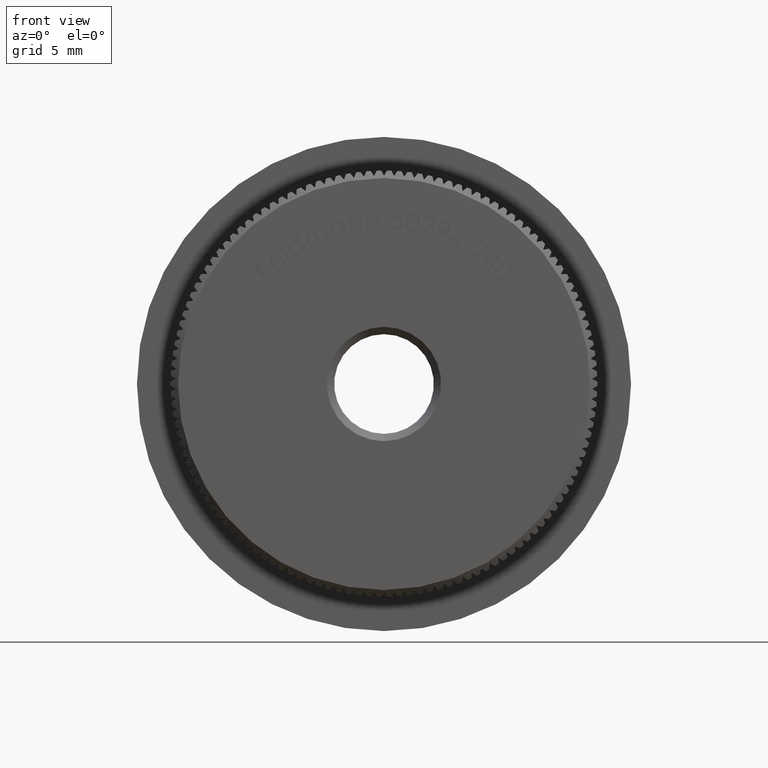
[diagram: clean part render]
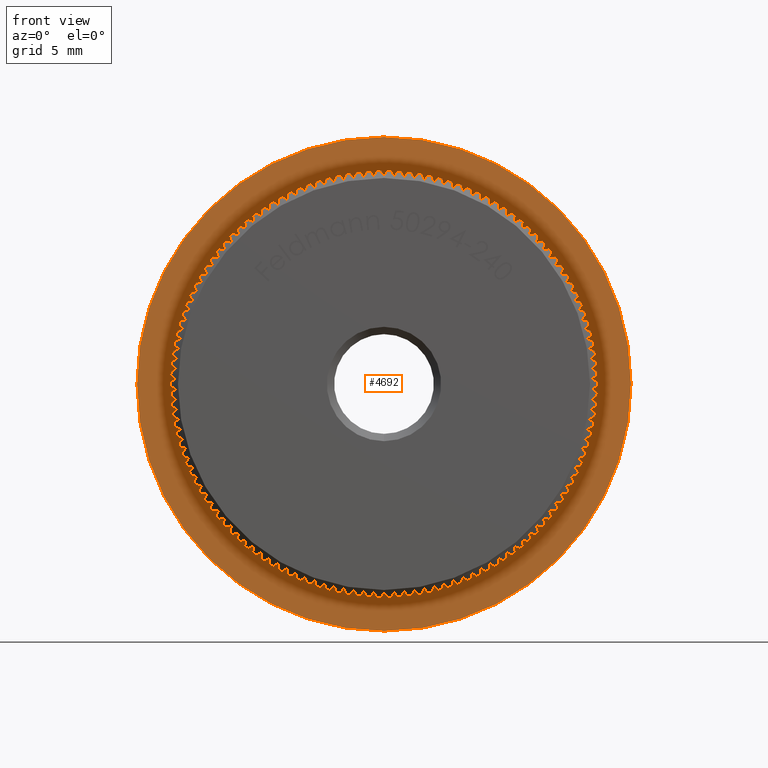
[diagram: same view with one face highlighted and labeled with its STEP entity id]
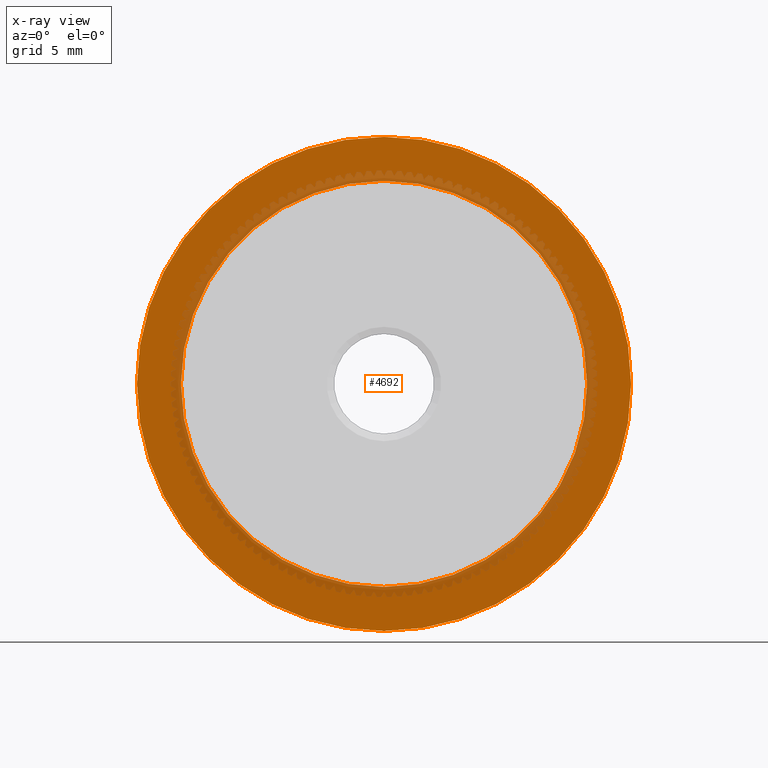
[diagram: x-ray of the same camera — body ghosted, the highlighted face saturated]
A machine part, front view. The second image highlights one B-rep face of the part: STEP entity #4692.
The next image is the same camera in x-ray: the body ghosted, the highlighted face saturated — about 20% of this face is hidden behind the body in this view.
In plain terms, the highlighted planar face has unit normal (0, -1, -0).
Its self-contained STEP definition (entity closure, byte-faithful):
#97 = EDGE_LOOP ( 'NONE', ( #6974, #23513 ) ) ;
#1040 = EDGE_CURVE ( 'NONE', #10703, #14695, #23790, .T. ) ;
#2200 = CARTESIAN_POINT ( 'NONE',  ( 13.85000000000000100, 7.799999999999999800, 0.0000000000000000000 ) ) ;
#2312 = CIRCLE ( 'NONE', #14915, 16.85000000000000100 ) ;
#2924 = CARTESIAN_POINT ( 'NONE',  ( 0.0000000000000000000, 7.799999999999998900, 0.0000000000000000000 ) ) ;
#3750 = AXIS2_PLACEMENT_3D ( 'NONE', #9830, #24171, #21865 ) ;
#4086 = DIRECTION ( 'NONE',  ( 0.0000000000000000000, 0.0000000000000000000, -1.000000000000000000 ) ) ;
#4467 = CARTESIAN_POINT ( 'NONE',  ( 0.0000000000000000000, 7.799999999999998900, -13.85000000000000100 ) ) ;
#4692 = ADVANCED_FACE ( 'NONE', ( #10247, #7026 ), #12594, .T. ) ;
#5930 = DIRECTION ( 'NONE',  ( -0.0000000000000000000, -1.000000000000000000, -0.0000000000000000000 ) ) ;
#6691 = AXIS2_PLACEMENT_3D ( 'NONE', #2200, #10358, #4086 ) ;
#6974 = ORIENTED_EDGE ( 'NONE', *, *, #23171, .T. ) ;
#7026 = FACE_BOUND ( 'NONE', #12973, .T. ) ;
#8613 = AXIS2_PLACEMENT_3D ( 'NONE', #23726, #11466, #13538 ) ;
#8686 = AXIS2_PLACEMENT_3D ( 'NONE', #2924, #9026, #15130 ) ;
#9026 = DIRECTION ( 'NONE',  ( -0.0000000000000000000, -1.000000000000000000, -0.0000000000000000000 ) ) ;
#9830 = CARTESIAN_POINT ( 'NONE',  ( 0.0000000000000000000, 7.799999999999998900, 0.0000000000000000000 ) ) ;
#10247 = FACE_OUTER_BOUND ( 'NONE', #97, .T. ) ;
#10358 = DIRECTION ( 'NONE',  ( 0.0000000000000000000, -1.000000000000000000, -0.0000000000000000000 ) ) ;
#10703 = VERTEX_POINT ( 'NONE', #22096 ) ;
#10786 = ORIENTED_EDGE ( 'NONE', *, *, #1040, .F. ) ;
#11466 = DIRECTION ( 'NONE',  ( -0.0000000000000000000, -1.000000000000000000, -0.0000000000000000000 ) ) ;
#11591 = CARTESIAN_POINT ( 'NONE',  ( 0.0000000000000000000, 7.799999999999999800, -16.85000000000000100 ) ) ;
#11752 = CARTESIAN_POINT ( 'NONE',  ( 0.0000000000000000000, 7.799999999999999800, 0.0000000000000000000 ) ) ;
#12594 = PLANE ( 'NONE',  #6691 ) ;
#12973 = EDGE_LOOP ( 'NONE', ( #14274, #10786 ) ) ;
#13533 = DIRECTION ( 'NONE',  ( 0.0000000000000000000, 0.0000000000000000000, -1.000000000000000000 ) ) ;
#13538 = DIRECTION ( 'NONE',  ( 0.0000000000000000000, 0.0000000000000000000, -1.000000000000000000 ) ) ;
#14274 = ORIENTED_EDGE ( 'NONE', *, *, #17040, .F. ) ;
#14585 = EDGE_CURVE ( 'NONE', #16371, #22438, #2312, .T. ) ;
#14695 = VERTEX_POINT ( 'NONE', #4467 ) ;
#14915 = AXIS2_PLACEMENT_3D ( 'NONE', #11752, #5930, #13533 ) ;
#15065 = CIRCLE ( 'NONE', #8613, 16.85000000000000100 ) ;
#15130 = DIRECTION ( 'NONE',  ( 0.0000000000000000000, 0.0000000000000000000, -1.000000000000000000 ) ) ;
#16371 = VERTEX_POINT ( 'NONE', #21111 ) ;
#17040 = EDGE_CURVE ( 'NONE', #14695, #10703, #23069, .T. ) ;
#21111 = CARTESIAN_POINT ( 'NONE',  ( 2.063529856563290200E-015, 7.799999999999999800, 16.85000000000000100 ) ) ;
#21865 = DIRECTION ( 'NONE',  ( 0.0000000000000000000, 0.0000000000000000000, -1.000000000000000000 ) ) ;
#22096 = CARTESIAN_POINT ( 'NONE',  ( 1.738998454789241500E-015, 7.799999999999998900, 13.85000000000000100 ) ) ;
#22438 = VERTEX_POINT ( 'NONE', #11591 ) ;
#23069 = CIRCLE ( 'NONE', #3750, 13.85000000000000100 ) ;
#23171 = EDGE_CURVE ( 'NONE', #22438, #16371, #15065, .T. ) ;
#23513 = ORIENTED_EDGE ( 'NONE', *, *, #14585, .T. ) ;
#23726 = CARTESIAN_POINT ( 'NONE',  ( 0.0000000000000000000, 7.799999999999999800, 0.0000000000000000000 ) ) ;
#23790 = CIRCLE ( 'NONE', #8686, 13.85000000000000100 ) ;
#24171 = DIRECTION ( 'NONE',  ( -0.0000000000000000000, -1.000000000000000000, -0.0000000000000000000 ) ) ;